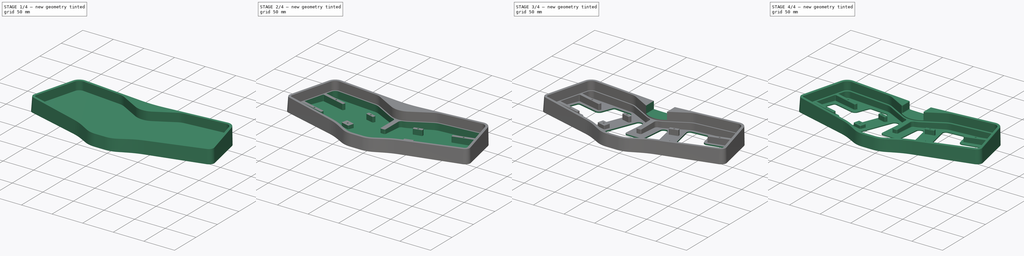
[diagram: build sequence overview — one tinted view per stage of 4, left to right]
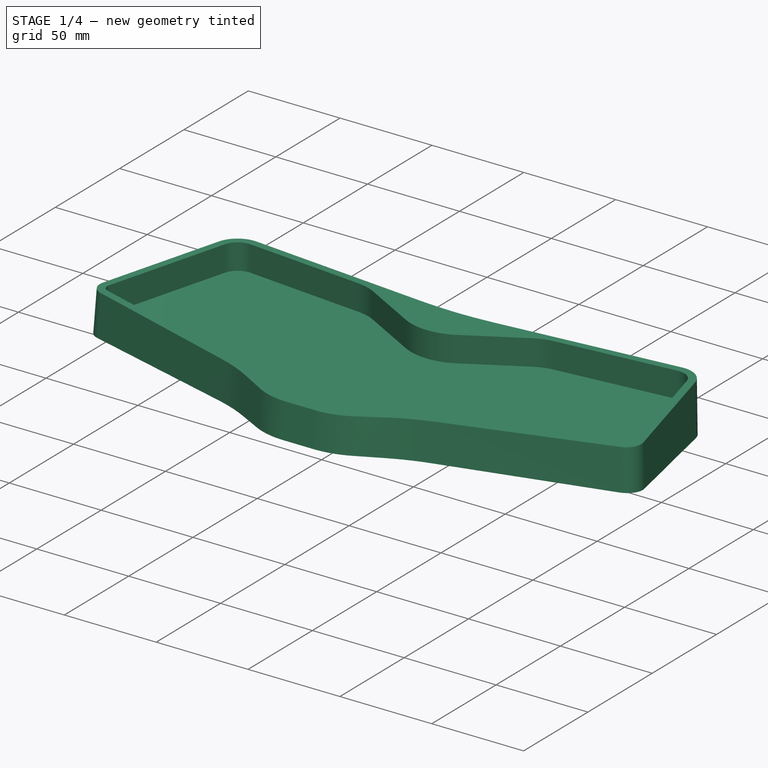
[diagram: stage 1 of 4 — iso view after this stage's code; geometry added in this stage tinted green]
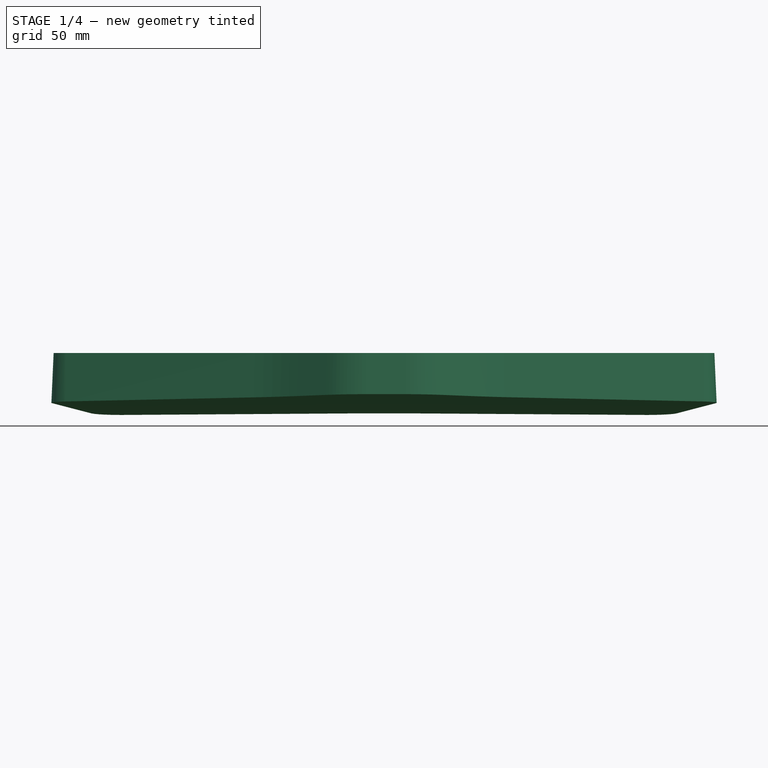
[diagram: stage 1 of 4 — front view after this stage's code; geometry added in this stage tinted green]
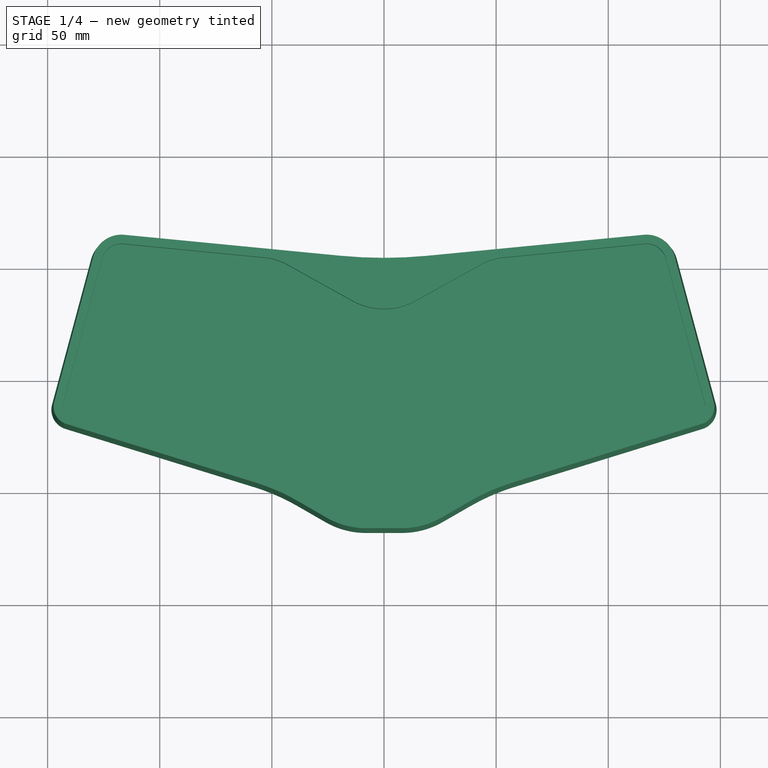
[diagram: stage 1 of 4 — top view after this stage's code; geometry added in this stage tinted green]
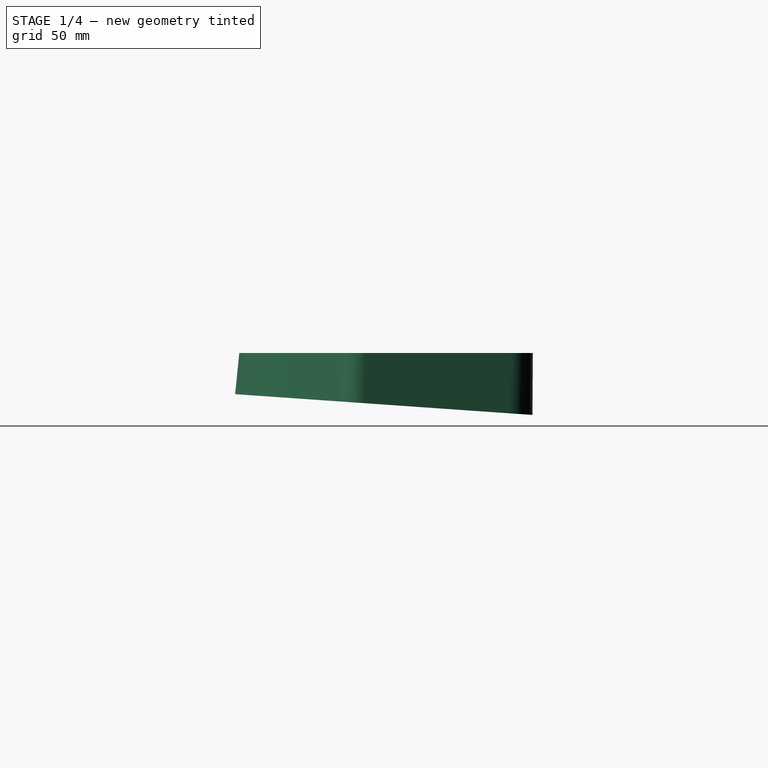
[diagram: stage 1 of 4 — right view after this stage's code; geometry added in this stage tinted green]
FCSTD DOCUMENT  (FreeCAD 0.20R)
Label: case
License: All rights reserved
LicenseURL: http://en.wikipedia.org/wiki/All_rights_reserved
objects: Sketcher::SketchObject×7, PartDesign::Pocket×4, PartDesign::Fillet×2, PartDesign::AdditiveLoft×1, PartDesign::Hole×1, PartDesign::Chamfer×1, PartDesign::Body×1
note: 26 computed .brp shape members not serialized (recipe doc carries the construction recipe); baked Part::Feature solids carry a one-line shape summary decoded from their .brp

FEATURE [Sketcher::SketchObject] Sketch
  AttachmentOffset = pos=(0,-1,0) rot=(1,0,0;-0.069813rad)
  FullyConstrained = false
  MapMode = 5
  Placement = pos=(0,-1,0) rot=(1,0,0;6.21337rad)
  Support = -> [XY_Plane]
  sketch-geometry (18):
    g0: ArcOfCircle CenterX=-4.547e-13 CenterY=255.556 CenterZ=0 NormalX=0 NormalY=0 NormalZ=1 AngleXU=0 Radius=200 StartAngle=4.61574 EndAngle=4.80904
    g1: LineSegment StartX=-141.984 StartY=-20.4604 StartZ=0 EndX=-57.8632 EndY=-46.519 EndZ=0
    g2: LineSegment StartX=115.707 StartY=65.8363 StartZ=0 EndX=19.3001 EndY=56.4893 EndZ=0
    g3: ArcOfCircle CenterX=85.6783 CenterY=-136.309 CenterZ=0 NormalX=0 NormalY=0 NormalZ=1 AngleXU=0 Radius=94 StartAngle=1.8712 EndAngle=2.0944
    g4: LineSegment StartX=141.984 StartY=-20.4604 StartZ=0 EndX=57.8632 EndY=-46.519 EndZ=0
    g5: ArcOfCircle CenterX=-117.058 CenterY=51.9016 CenterZ=0 NormalX=0 NormalY=0 NormalZ=1 AngleXU=0 Radius=14 StartAngle=1.47415 EndAngle=2.87979
    g6: ArcOfCircle CenterX=-85.6783 CenterY=-136.309 CenterZ=0 NormalX=0 NormalY=0 NormalZ=1 AngleXU=0 Radius=94 StartAngle=1.0472 EndAngle=1.27039
    g7: LineSegment StartX=-26.0795 StartY=-62.1769 StartZ=0 EndX=-38.6783 EndY=-54.903 EndZ=0
    g8: LineSegment StartX=-115.707 StartY=65.8363 StartZ=0 EndX=-19.3001 EndY=56.4893 EndZ=0
    g9: ArcOfCircle CenterX=-8.07953 CenterY=-31 CenterZ=0 NormalX=0 NormalY=0 NormalZ=1 AngleXU=0 Radius=36 StartAngle=4.18879 EndAngle=4.71239
    g10: LineSegment StartX=-8.07953 StartY=-67 StartZ=0 EndX=8.07953 EndY=-67 EndZ=0
    g11: ArcOfCircle CenterX=-139.32 CenterY=-11.8634 CenterZ=0 NormalX=0 NormalY=0 NormalZ=1 AngleXU=0 Radius=9 StartAngle=2.87979 EndAngle=4.41199
    g12: LineSegment StartX=-130.581 StartY=55.5251 StartZ=0 EndX=-148.014 EndY=-9.53407 EndZ=0
    g13: ArcOfCircle CenterX=8.07953 CenterY=-31 CenterZ=0 NormalX=0 NormalY=0 NormalZ=1 AngleXU=0 Radius=36 StartAngle=4.71239 EndAngle=5.23599
    g14: LineSegment StartX=26.0795 StartY=-62.1769 StartZ=0 EndX=38.6783 EndY=-54.903 EndZ=0
    g15: ArcOfCircle CenterX=139.32 CenterY=-11.8634 CenterZ=0 NormalX=0 NormalY=0 NormalZ=1 AngleXU=0 Radius=9 StartAngle=5.01279 EndAngle=6.54498
    g16: LineSegment StartX=130.581 StartY=55.5251 StartZ=0 EndX=148.014 EndY=-9.53407 EndZ=0
    g17: ArcOfCircle CenterX=117.058 CenterY=51.9016 CenterZ=0 NormalX=0 NormalY=0 NormalZ=1 AngleXU=0 Radius=14 StartAngle=0.261799 EndAngle=1.66745
  constraints (18):
    c: Coincident(g11,g12)
    c: Coincident(g1,g11)
    c: Coincident(g5,g12)
    c: Coincident(g5,g8)
    c: Coincident(g1,g6)
    c: Coincident(g6,g7)
    c: Coincident(g7,g9)
    c: Coincident(g0,g8)
    c: Coincident(g9,g10)
    c: Coincident(g10,g13)
    c: Coincident(g0,g2)
    c: Coincident(g13,g14)
    c: Coincident(g3,g14)
    c: Coincident(g3,g4)
    c: Coincident(g2,g17)
    c: Coincident(g16,g17)
    c: Coincident(g4,g15)
    c: Coincident(g15,g16)
FEATURE [Sketcher::SketchObject] Sketch001
  AttachmentOffset = pos=(0,0,23) rot=(0,0,1;0rad)
  FullyConstrained = false
  MapMode = 5
  Placement = pos=(0,0,23) rot=(0,0,1;0rad)
  Support = -> [XY_Plane]
  sketch-geometry (18):
    g0: ArcOfCircle CenterX=-4.547e-13 CenterY=255.556 CenterZ=0 NormalX=0 NormalY=0 NormalZ=1 AngleXU=0 Radius=201 StartAngle=4.61574 EndAngle=4.80904
    g1: LineSegment StartX=-115.804 StartY=64.8409 StartZ=0 EndX=-19.3966 EndY=55.494 EndZ=0
    g2: ArcOfCircle CenterX=-117.058 CenterY=51.9016 CenterZ=0 NormalX=0 NormalY=0 NormalZ=1 AngleXU=0 Radius=13 StartAngle=1.47415 EndAngle=2.87979
    g3: LineSegment StartX=-129.615 StartY=55.2663 StartZ=0 EndX=-147.048 EndY=-9.79289 EndZ=0
    g4: ArcOfCircle CenterX=-139.32 CenterY=-11.8634 CenterZ=0 NormalX=0 NormalY=0 NormalZ=1 AngleXU=0 Radius=8 StartAngle=2.87979 EndAngle=4.41199
    g5: LineSegment StartX=-141.688 StartY=-19.5052 StartZ=0 EndX=-57.5673 EndY=-45.5638 EndZ=0
    g6: ArcOfCircle CenterX=-85.6783 CenterY=-136.309 CenterZ=0 NormalX=0 NormalY=0 NormalZ=1 AngleXU=0 Radius=95 StartAngle=1.0472 EndAngle=1.27039
    g7: LineSegment StartX=-25.5795 StartY=-61.3109 StartZ=0 EndX=-38.1783 EndY=-54.037 EndZ=0
    g8: ArcOfCircle CenterX=-8.07953 CenterY=-31 CenterZ=0 NormalX=0 NormalY=0 NormalZ=1 AngleXU=0 Radius=35 StartAngle=4.18879 EndAngle=4.71239
    g9: LineSegment StartX=-8.07953 StartY=-66 StartZ=0 EndX=8.07953 EndY=-66 EndZ=0
    g10: ArcOfCircle CenterX=8.07953 CenterY=-31 CenterZ=0 NormalX=0 NormalY=0 NormalZ=1 AngleXU=0 Radius=35 StartAngle=4.71239 EndAngle=5.23599
    g11: LineSegment StartX=25.5795 StartY=-61.3109 StartZ=0 EndX=38.1783 EndY=-54.037 EndZ=0
    g12: ArcOfCircle CenterX=85.6783 CenterY=-136.309 CenterZ=0 NormalX=0 NormalY=0 NormalZ=1 AngleXU=0 Radius=95 StartAngle=1.8712 EndAngle=2.0944
    g13: LineSegment StartX=141.688 StartY=-19.5052 StartZ=0 EndX=57.5673 EndY=-45.5638 EndZ=0
    g14: ArcOfCircle CenterX=139.32 CenterY=-11.8634 CenterZ=0 NormalX=0 NormalY=0 NormalZ=1 AngleXU=0 Radius=8 StartAngle=5.01279 EndAngle=6.54498
    g15: LineSegment StartX=129.615 StartY=55.2663 StartZ=0 EndX=147.048 EndY=-9.79289 EndZ=0
    g16: ArcOfCircle CenterX=117.058 CenterY=51.9016 CenterZ=0 NormalX=0 NormalY=0 NormalZ=1 AngleXU=0 Radius=13 StartAngle=0.261799 EndAngle=1.66745
    g17: LineSegment StartX=115.804 StartY=64.8409 StartZ=0 EndX=19.3966 EndY=55.494 EndZ=0
  constraints (18):
    c: Coincident(g3,g4)
    c: Coincident(g4,g5)
    c: Coincident(g2,g3)
    c: Coincident(g1,g2)
    c: Coincident(g5,g6)
    c: Coincident(g6,g7)
    c: Coincident(g7,g8)
    c: Coincident(g0,g1)
    c: Coincident(g8,g9)
    c: Coincident(g9,g10)
    c: Coincident(g0,g17)
    c: Coincident(g10,g11)
    c: Coincident(g11,g12)
    c: Coincident(g12,g13)
    c: Coincident(g16,g17)
    c: Coincident(g15,g16)
    c: Coincident(g13,g14)
    c: Coincident(g14,g15)
FEATURE [PartDesign::AdditiveLoft] AdditiveLoft
  Closed = true
  Profile = -> Sketch
  Ruled = true
  Sections = -> [Sketch001]
FEATURE [Sketcher::SketchObject] Sketch002
  FullyConstrained = false
  MapMode = 5
  Placement = pos=(0,0,23) rot=(0,0,1;0rad)
  Support = -> [AdditiveLoft]
  sketch-geometry (22):
    g0: ArcOfCircle CenterX=-2.84e-14 CenterY=60.8327 CenterZ=0 NormalX=0 NormalY=0 NormalZ=1 AngleXU=0 Radius=29 StartAngle=4.20561 EndAngle=5.21917
    g1: LineSegment StartX=-43.137 StartY=51.6107 StartZ=0 EndX=-14.0755 EndY=35.4776 EndZ=0
    g2: LineSegment StartX=43.137 StartY=51.6107 StartZ=0 EndX=14.0755 EndY=35.4776 EndZ=0
    g3: ArcOfCircle CenterX=55.7564 CenterY=28.8785 CenterZ=0 NormalX=0 NormalY=0 NormalZ=1 AngleXU=0 Radius=26 StartAngle=1.66745 EndAngle=2.07757
    g4: ArcOfCircle CenterX=-55.7564 CenterY=28.8785 CenterZ=0 NormalX=0 NormalY=0 NormalZ=1 AngleXU=0 Radius=26 StartAngle=1.06402 EndAngle=1.47415
    g5: LineSegment StartX=-116.19 StartY=60.8596 StartZ=0 EndX=-53.2474 EndY=54.7572 EndZ=0
    g6: ArcOfCircle CenterX=-117.058 CenterY=51.9016 CenterZ=0 NormalX=0 NormalY=0 NormalZ=1 AngleXU=0 Radius=9 StartAngle=1.47415 EndAngle=2.87979
    g7: LineSegment StartX=-125.752 StartY=54.231 StartZ=0 EndX=-143.184 EndY=-10.8282 EndZ=0
    g8: ArcOfCircle CenterX=-139.32 CenterY=-11.8634 CenterZ=0 NormalX=0 NormalY=0 NormalZ=1 AngleXU=0 Radius=4 StartAngle=2.87979 EndAngle=4.41199
    g9: LineSegment StartX=-140.504 StartY=-15.6843 StartZ=0 EndX=-56.3837 EndY=-41.7429 EndZ=0
    g10: ArcOfCircle CenterX=-85.6783 CenterY=-136.309 CenterZ=0 NormalX=0 NormalY=0 NormalZ=1 AngleXU=0 Radius=99 StartAngle=1.0472 EndAngle=1.27039
    g11: LineSegment StartX=-23.5795 StartY=-57.8468 StartZ=0 EndX=-36.1783 EndY=-50.5729 EndZ=0
    g12: ArcOfCircle CenterX=-8.07953 CenterY=-31 CenterZ=0 NormalX=0 NormalY=0 NormalZ=1 AngleXU=0 Radius=31 StartAngle=4.18879 EndAngle=4.71239
    g13: LineSegment StartX=-8.07953 StartY=-62 StartZ=0 EndX=8.07953 EndY=-62 EndZ=0
    g14: ArcOfCircle CenterX=8.07953 CenterY=-31 CenterZ=0 NormalX=0 NormalY=0 NormalZ=1 AngleXU=0 Radius=31 StartAngle=4.71239 EndAngle=5.23599
    g15: LineSegment StartX=23.5795 StartY=-57.8468 StartZ=0 EndX=36.1783 EndY=-50.5729 EndZ=0
    g16: ArcOfCircle CenterX=85.6783 CenterY=-136.309 CenterZ=0 NormalX=0 NormalY=0 NormalZ=1 AngleXU=0 Radius=99 StartAngle=1.8712 EndAngle=2.0944
    g17: LineSegment StartX=140.504 StartY=-15.6843 StartZ=0 EndX=56.3837 EndY=-41.7429 EndZ=0
    g18: LineSegment StartX=116.19 StartY=60.8596 StartZ=0 EndX=53.2474 EndY=54.7572 EndZ=0
    g19: ArcOfCircle CenterX=117.058 CenterY=51.9016 CenterZ=0 NormalX=0 NormalY=0 NormalZ=1 AngleXU=0 Radius=9 StartAngle=0.261799 EndAngle=1.66745
    g20: LineSegment StartX=125.752 StartY=54.231 StartZ=0 EndX=143.184 EndY=-10.8282 EndZ=0
    g21: ArcOfCircle CenterX=139.32 CenterY=-11.8634 CenterZ=0 NormalX=0 NormalY=0 NormalZ=1 AngleXU=0 Radius=4 StartAngle=5.01279 EndAngle=6.54498
  constraints (22):
    c: Coincident(g7,g8)
    c: Coincident(g8,g9)
    c: Coincident(g6,g7)
    c: Coincident(g5,g6)
    c: Coincident(g9,g10)
    c: Coincident(g4,g5)
    c: Coincident(g1,g4)
    c: Coincident(g10,g11)
    c: Coincident(g11,g12)
    c: Coincident(g0,g1)
    c: Coincident(g12,g13)
    c: Coincident(g13,g14)
    c: Coincident(g0,g2)
    c: Coincident(g14,g15)
    c: Coincident(g15,g16)
    c: Coincident(g2,g3)
    c: Coincident(g3,g18)
    c: Coincident(g16,g17)
    c: Coincident(g18,g19)
    c: Coincident(g19,g20)
    c: Coincident(g17,g21)
    c: Coincident(g20,g21)
FEATURE [PartDesign::Pocket] Pocket
  BaseFeature = -> AdditiveLoft
  Direction = (0,0,-1)
  Length = 14
  Length2 = 5
  Profile = -> Sketch002
  ReferenceAxis = -> Sketch002 [N_Axis]
  Type = 0
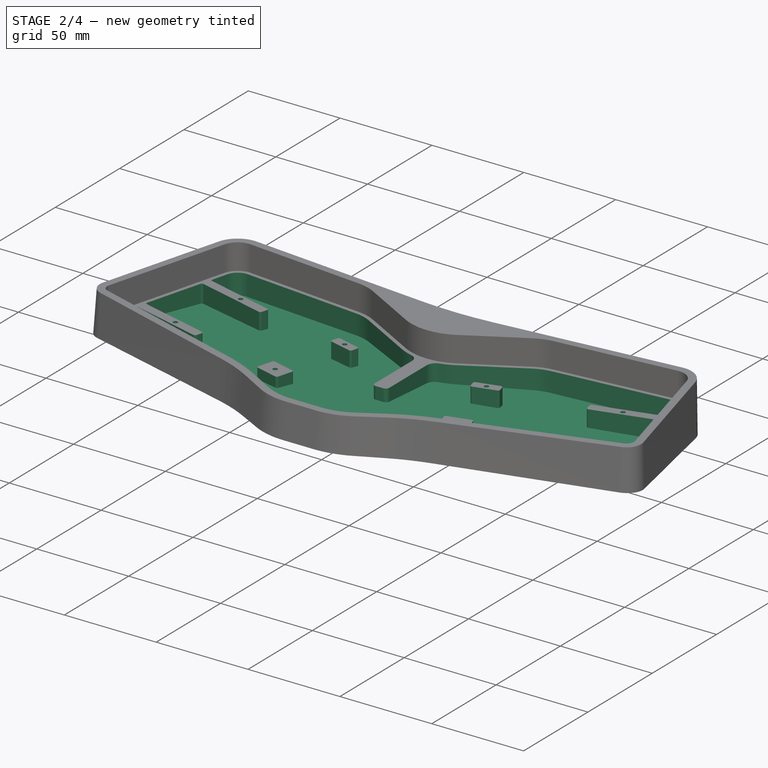
[diagram: stage 2 of 4 — iso view after this stage's code; geometry added in this stage tinted green]
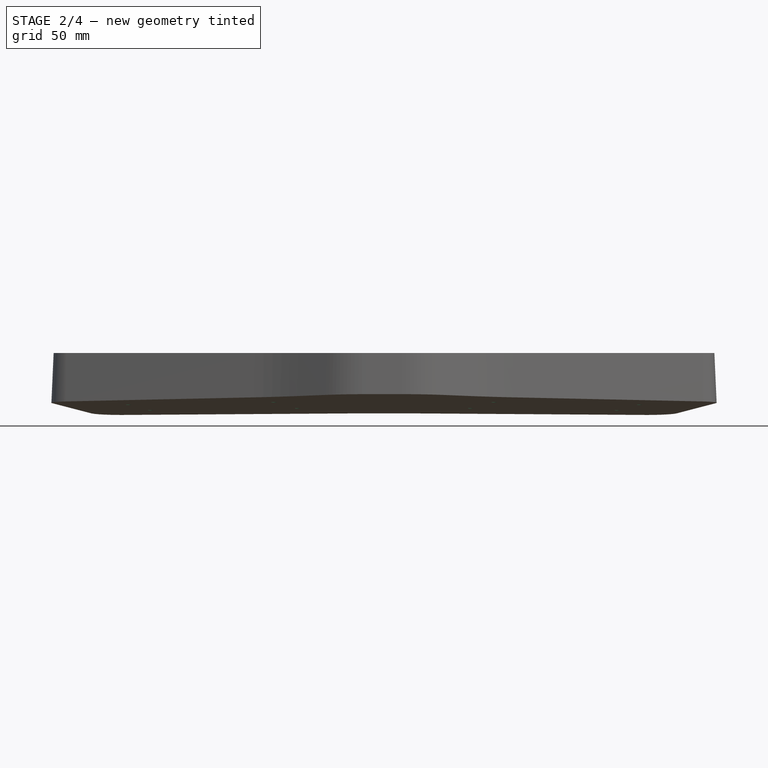
[diagram: stage 2 of 4 — front view after this stage's code; geometry added in this stage tinted green]
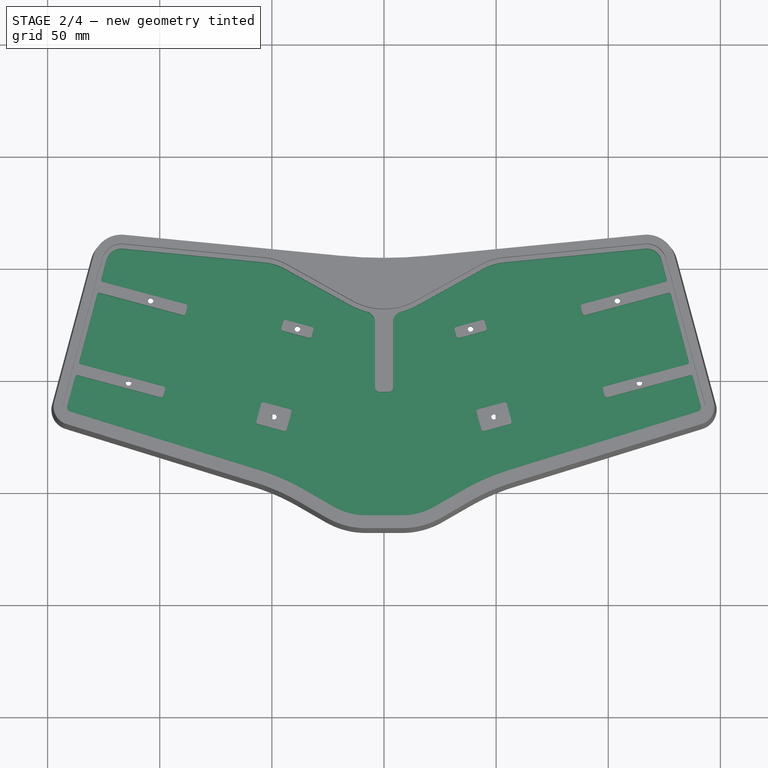
[diagram: stage 2 of 4 — top view after this stage's code; geometry added in this stage tinted green]
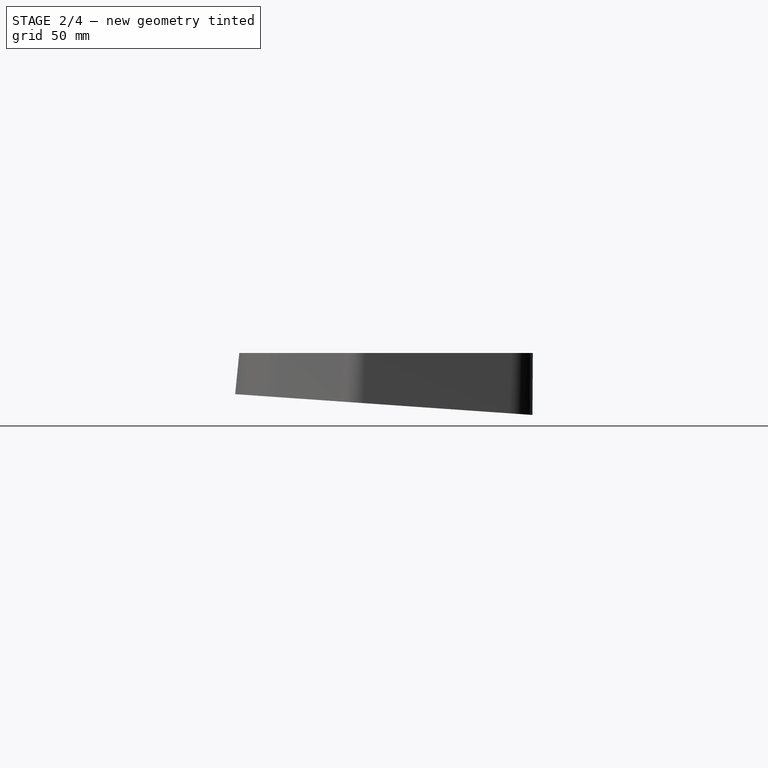
[diagram: stage 2 of 4 — right view after this stage's code; geometry added in this stage tinted green]
FEATURE [Sketcher::SketchObject] Sketch003
  FullyConstrained = false
  MapMode = 5
  Placement = pos=(0,0,9) rot=(0,0,1;0rad)
  Support = -> [Pocket]
  sketch-geometry (94):
    g0: LineSegment StartX=-116.383 StartY=58.8689 StartZ=0 EndX=-53.4404 EndY=52.7665 EndZ=0
    g1: ArcOfCircle CenterX=-55.7564 CenterY=28.8785 CenterZ=0 NormalX=0 NormalY=0 NormalZ=1 AngleXU=0 Radius=24 StartAngle=1.06402 EndAngle=1.47415
    g2: LineSegment StartX=-44.1077 StartY=49.862 StartZ=0 EndX=-15.0462 EndY=33.729 EndZ=0
    g3: ArcOfCircle CenterX=-117.058 CenterY=51.9016 CenterZ=0 NormalX=0 NormalY=0 NormalZ=1 AngleXU=0 Radius=7 StartAngle=1.47415 EndAngle=2.87979
    g4: ArcOfCircle CenterX=-139.32 CenterY=-11.8634 CenterZ=0 NormalX=0 NormalY=0 NormalZ=1 AngleXU=0 Radius=2 StartAngle=2.87979 EndAngle=4.41199
    g5: LineSegment StartX=-139.912 StartY=-13.7739 StartZ=0 EndX=-55.7919 EndY=-39.8325 EndZ=0
    g6: ArcOfCircle CenterX=-85.6783 CenterY=-136.309 CenterZ=0 NormalX=0 NormalY=0 NormalZ=1 AngleXU=0 Radius=101 StartAngle=1.0472 EndAngle=1.27039
    g7: LineSegment StartX=-22.5795 StartY=-56.1147 StartZ=0 EndX=-35.1783 EndY=-48.8409 EndZ=0
    g8: ArcOfCircle CenterX=-8.07953 CenterY=-31 CenterZ=0 NormalX=0 NormalY=0 NormalZ=1 AngleXU=0 Radius=29 StartAngle=4.18879 EndAngle=4.71239
    g9: LineSegment StartX=116.383 StartY=58.8689 StartZ=0 EndX=53.4404 EndY=52.7665 EndZ=0
    g10: ArcOfCircle CenterX=55.7564 CenterY=28.8785 CenterZ=0 NormalX=0 NormalY=0 NormalZ=1 AngleXU=0 Radius=24 StartAngle=1.66745 EndAngle=2.07757
    g11: LineSegment StartX=44.1077 StartY=49.862 StartZ=0 EndX=15.0462 EndY=33.729 EndZ=0
    g12: ArcOfCircle CenterX=117.058 CenterY=51.9016 CenterZ=0 NormalX=0 NormalY=0 NormalZ=1 AngleXU=0 Radius=7 StartAngle=0.261799 EndAngle=1.66745
    g13: ArcOfCircle CenterX=139.32 CenterY=-11.8634 CenterZ=0 NormalX=0 NormalY=0 NormalZ=1 AngleXU=0 Radius=2 StartAngle=5.01279 EndAngle=6.54498
    g14: LineSegment StartX=139.912 StartY=-13.7739 StartZ=0 EndX=55.7919 EndY=-39.8325 EndZ=0
    g15: ArcOfCircle CenterX=85.6783 CenterY=-136.309 CenterZ=0 NormalX=0 NormalY=0 NormalZ=1 AngleXU=0 Radius=101 StartAngle=1.8712 EndAngle=2.0944
    g16: LineSegment StartX=22.5795 StartY=-56.1147 StartZ=0 EndX=35.1783 EndY=-48.8409 EndZ=0
    g17: ArcOfCircle CenterX=8.07953 CenterY=-31 CenterZ=0 NormalX=0 NormalY=0 NormalZ=1 AngleXU=0 Radius=29 StartAngle=4.71239 EndAngle=5.23599
    g18: LineSegment StartX=-8.07953 StartY=-60 StartZ=0 EndX=8.07953 EndY=-60 EndZ=0
    g19: LineSegment StartX=123.82 StartY=53.7134 StartZ=0 EndX=126.092 EndY=45.234 EndZ=0
    g20: ArcOfCircle CenterX=125.126 CenterY=44.9752 CenterZ=0 NormalX=0 NormalY=0 NormalZ=1 AngleXU=0 Radius=1 StartAngle=4.97419 EndAngle=6.54498
    g21: ArcOfCircle CenterX=126.938 CenterY=38.2137 CenterZ=0 NormalX=0 NormalY=0 NormalZ=1 AngleXU=0 Radius=1 StartAngle=0.261799 EndAngle=1.8326
    g22: LineSegment StartX=88.438 StartY=34.1095 StartZ=0 EndX=125.385 EndY=44.0093 EndZ=0
    g23: ArcOfCircle CenterX=88.6968 CenterY=33.1435 CenterZ=0 NormalX=0 NormalY=0 NormalZ=1 AngleXU=0 Radius=1 StartAngle=1.8326 EndAngle=3.40339
    g24: LineSegment StartX=87.7309 StartY=32.8847 StartZ=0 EndX=88.5073 EndY=29.9869 EndZ=0
    g25: ArcOfCircle CenterX=89.4732 CenterY=30.2457 CenterZ=0 NormalX=0 NormalY=0 NormalZ=1 AngleXU=0 Radius=1 StartAngle=3.40339 EndAngle=4.97419
    g26: ArcOfCircle CenterX=55.9064 CenterY=-18.3478 CenterZ=0 NormalX=0 NormalY=0 NormalZ=1 AngleXU=0 Radius=1 StartAngle=4.97419 EndAngle=6.54498
    g27: LineSegment StartX=56.8723 StartY=-18.089 StartZ=0 EndX=54.8018 EndY=-10.3615 EndZ=0
    g28: ArcOfCircle CenterX=53.8359 CenterY=-10.6204 CenterZ=0 NormalX=0 NormalY=0 NormalZ=1 AngleXU=0 Radius=1 StartAngle=0.261799 EndAngle=1.8326
    g29: LineSegment StartX=41.9859 StartY=-12.7603 StartZ=0 EndX=53.577 EndY=-9.65444 EndZ=0
    g30: ArcOfCircle CenterX=42.2447 CenterY=-13.7262 CenterZ=0 NormalX=0 NormalY=0 NormalZ=1 AngleXU=0 Radius=1 StartAngle=1.8326 EndAngle=3.40339
    g31: LineSegment StartX=43.3494 StartY=-21.7124 StartZ=0 EndX=41.2788 EndY=-13.985 EndZ=0
    g32: LineSegment StartX=44.5741 StartY=-22.4195 StartZ=0 EndX=56.1652 EndY=-19.3137 EndZ=0
    g33: ArcOfCircle CenterX=44.3153 CenterY=-21.4536 CenterZ=0 NormalX=0 NormalY=0 NormalZ=1 AngleXU=0 Radius=1 StartAngle=3.40339 EndAngle=4.97419
    g34: ArcOfCircle CenterX=32.4096 CenterY=22.979 CenterZ=0 NormalX=0 NormalY=0 NormalZ=1 AngleXU=0 Radius=1 StartAngle=1.8326 EndAngle=3.40339
    g35: LineSegment StartX=43.7419 StartY=27.0507 StartZ=0 EndX=32.1508 EndY=23.9449 EndZ=0
    g36: ArcOfCircle CenterX=44.0007 CenterY=26.0848 CenterZ=0 NormalX=0 NormalY=0 NormalZ=1 AngleXU=0 Radius=1 StartAngle=0.261799 EndAngle=1.8326
    g37: LineSegment StartX=45.7431 StartY=23.4459 StartZ=0 EndX=44.9667 EndY=26.3436 EndZ=0
    g38: ArcOfCircle CenterX=44.7772 CenterY=23.187 CenterZ=0 NormalX=0 NormalY=0 NormalZ=1 AngleXU=0 Radius=1 StartAngle=4.97419 EndAngle=6.54498
    g39: LineSegment StartX=33.4449 StartY=19.1153 StartZ=0 EndX=45.036 EndY=22.2211 EndZ=0
    g40: LineSegment StartX=31.4437 StartY=22.7202 StartZ=0 EndX=32.2201 EndY=19.8224 EndZ=0
    g41: ArcOfCircle CenterX=33.1861 CenterY=20.0812 CenterZ=0 NormalX=0 NormalY=0 NormalZ=1 AngleXU=0 Radius=1 StartAngle=3.40339 EndAngle=4.97419
    g42: LineSegment StartX=137.739 StartY=1.76736 StartZ=0 EndX=141.252 EndY=-11.3458 EndZ=0
    g43: ArcOfCircle CenterX=136.773 CenterY=1.50854 CenterZ=0 NormalX=0 NormalY=0 NormalZ=1 AngleXU=0 Radius=1 StartAngle=0.261799 EndAngle=1.8326
    g44: LineSegment StartX=127.903 StartY=38.4725 StartZ=0 EndX=135.927 EndY=8.52884 EndZ=0
    g45: ArcOfCircle CenterX=134.961 CenterY=8.27002 CenterZ=0 NormalX=0 NormalY=0 NormalZ=1 AngleXU=0 Radius=1 StartAngle=4.97419 EndAngle=6.54498
    g46: LineSegment StartX=135.22 StartY=7.3041 StartZ=0 EndX=98.2731 EndY=-2.59573 EndZ=0
    g47: ArcOfCircle CenterX=98.5319 CenterY=-3.56166 CenterZ=0 NormalX=0 NormalY=0 NormalZ=1 AngleXU=0 Radius=1 StartAngle=1.8326 EndAngle=3.40339
    g48: LineSegment StartX=97.566 StartY=-3.82047 StartZ=0 EndX=98.3424 EndY=-6.71825 EndZ=0
    g49: LineSegment StartX=99.5672 StartY=-7.42536 StartZ=0 EndX=136.514 EndY=2.47447 EndZ=0
    g50: ArcOfCircle CenterX=99.3084 CenterY=-6.45943 CenterZ=0 NormalX=0 NormalY=0 NormalZ=1 AngleXU=0 Radius=1 StartAngle=3.40339 EndAngle=4.97419
    g51: ArcOfCircle CenterX=2.84e-14 CenterY=60.8327 CenterZ=0 NormalX=0 NormalY=0 NormalZ=1 AngleXU=0 Radius=31 StartAngle=4.96507 EndAngle=5.21917
    g52: ArcOfCircle CenterX=9 CenterY=25.9758 CenterZ=0 NormalX=0 NormalY=0 NormalZ=1 AngleXU=0 Radius=5 StartAngle=1.82348 EndAngle=3.14159
    g53: ArcOfCircle CenterX=-2.84e-14 CenterY=60.8327 CenterZ=0 NormalX=0 NormalY=0 NormalZ=1 AngleXU=0 Radius=31 StartAngle=4.20561 EndAngle=4.45971
    g54: ArcOfCircle CenterX=-9 CenterY=25.9758 CenterZ=0 NormalX=0 NormalY=0 NormalZ=1 AngleXU=0 Radius=5 StartAngle=0 EndAngle=1.31812
    g55: ArcOfCircle CenterX=-88.6968 CenterY=33.1435 CenterZ=0 NormalX=0 NormalY=0 NormalZ=1 AngleXU=0 Radius=1 StartAngle=6.02139 EndAngle=7.59218
    g56: LineSegment StartX=-87.7309 StartY=32.8847 StartZ=0 EndX=-88.5073 EndY=29.9869 EndZ=0
    g57: ArcOfCircle CenterX=-89.4732 CenterY=30.2457 CenterZ=0 NormalX=0 NormalY=0 NormalZ=1 AngleXU=0 Radius=1 StartAngle=4.45059 EndAngle=6.02139
    g58: ArcOfCircle CenterX=-55.9064 CenterY=-18.3478 CenterZ=0 NormalX=0 NormalY=0 NormalZ=1 AngleXU=0 Radius=1 StartAngle=2.87979 EndAngle=4.45059
    g59: LineSegment StartX=-56.8723 StartY=-18.089 StartZ=0 EndX=-54.8018 EndY=-10.3615 EndZ=0
    g60: ArcOfCircle CenterX=-53.8359 CenterY=-10.6204 CenterZ=0 NormalX=0 NormalY=0 NormalZ=1 AngleXU=0 Radius=1 StartAngle=1.309 EndAngle=2.87979
    g61: LineSegment StartX=-41.9859 StartY=-12.7603 StartZ=0 EndX=-53.577 EndY=-9.65444 EndZ=0
    g62: ArcOfCircle CenterX=-42.2447 CenterY=-13.7262 CenterZ=0 NormalX=0 NormalY=0 NormalZ=1 AngleXU=0 Radius=1 StartAngle=6.02139 EndAngle=7.59218
    g63: LineSegment StartX=-43.3494 StartY=-21.7124 StartZ=0 EndX=-41.2788 EndY=-13.985 EndZ=0
    g64: LineSegment StartX=-44.5741 StartY=-22.4195 StartZ=0 EndX=-56.1652 EndY=-19.3137 EndZ=0
    g65: ArcOfCircle CenterX=-44.3153 CenterY=-21.4536 CenterZ=0 NormalX=0 NormalY=0 NormalZ=1 AngleXU=0 Radius=1 StartAngle=4.45059 EndAngle=6.02139
    g66: ArcOfCircle CenterX=-32.4096 CenterY=22.979 CenterZ=0 NormalX=0 NormalY=0 NormalZ=1 AngleXU=0 Radius=1 StartAngle=6.02139 EndAngle=7.59218
    g67: LineSegment StartX=-43.7419 StartY=27.0507 StartZ=0 EndX=-32.1508 EndY=23.9449 EndZ=0
    g68: ArcOfCircle CenterX=-44.0007 CenterY=26.0848 CenterZ=0 NormalX=0 NormalY=0 NormalZ=1 AngleXU=0 Radius=1 StartAngle=1.309 EndAngle=2.87979
    g69: LineSegment StartX=-45.7431 StartY=23.4459 StartZ=0 EndX=-44.9667 EndY=26.3436 EndZ=0
    g70: ArcOfCircle CenterX=-44.7772 CenterY=23.187 CenterZ=0 NormalX=0 NormalY=0 NormalZ=1 AngleXU=0 Radius=1 StartAngle=2.87979 EndAngle=4.45059
    g71: LineSegment StartX=-33.4449 StartY=19.1153 StartZ=0 EndX=-45.036 EndY=22.2211 EndZ=0
    g72: LineSegment StartX=-31.4437 StartY=22.7202 StartZ=0 EndX=-32.2201 EndY=19.8224 EndZ=0
    g73: ArcOfCircle CenterX=-33.1861 CenterY=20.0812 CenterZ=0 NormalX=0 NormalY=0 NormalZ=1 AngleXU=0 Radius=1 StartAngle=4.45059 EndAngle=6.02139
    g74: ArcOfCircle CenterX=-98.5319 CenterY=-3.56166 CenterZ=0 NormalX=0 NormalY=0 NormalZ=1 AngleXU=0 Radius=1 StartAngle=6.02139 EndAngle=7.59218
    g75: ArcOfCircle CenterX=-126.938 CenterY=38.2137 CenterZ=0 NormalX=0 NormalY=0 NormalZ=1 AngleXU=0 Radius=1 StartAngle=1.309 EndAngle=2.87979
    g76: LineSegment StartX=-88.438 StartY=34.1095 StartZ=0 EndX=-125.385 EndY=44.0093 EndZ=0
    g77: LineSegment StartX=-123.82 StartY=53.7134 StartZ=0 EndX=-126.092 EndY=45.234 EndZ=0
    g78: ArcOfCircle CenterX=-125.126 CenterY=44.9752 CenterZ=0 NormalX=0 NormalY=0 NormalZ=1 AngleXU=0 Radius=1 StartAngle=2.87979 EndAngle=4.45059
    g79: LineSegment StartX=-135.22 StartY=7.3041 StartZ=0 EndX=-98.2731 EndY=-2.59573 EndZ=0
    g80: LineSegment StartX=-127.903 StartY=38.4725 StartZ=0 EndX=-135.927 EndY=8.52884 EndZ=0
    g81: ArcOfCircle CenterX=-134.961 CenterY=8.27002 CenterZ=0 NormalX=0 NormalY=0 NormalZ=1 AngleXU=0 Radius=1 StartAngle=2.87979 EndAngle=4.45059
    g82: LineSegment StartX=-137.739 StartY=1.76736 StartZ=0 EndX=-141.252 EndY=-11.3458 EndZ=0
    g83: ArcOfCircle CenterX=-136.773 CenterY=1.50854 CenterZ=0 NormalX=0 NormalY=0 NormalZ=1 AngleXU=0 Radius=1 StartAngle=1.309 EndAngle=2.87979
    g84: LineSegment StartX=-89.7321 StartY=29.2798 StartZ=0 EndX=-126.679 EndY=39.1797 EndZ=0
    g85: LineSegment StartX=-99.5672 StartY=-7.42536 StartZ=0 EndX=-136.514 EndY=2.47447 EndZ=0
    g86: LineSegment StartX=-97.566 StartY=-3.82047 StartZ=0 EndX=-98.3424 EndY=-6.71825 EndZ=0
    g87: ArcOfCircle CenterX=-99.3084 CenterY=-6.45943 CenterZ=0 NormalX=0 NormalY=0 NormalZ=1 AngleXU=0 Radius=1 StartAngle=4.45059 EndAngle=6.02139
    g88: LineSegment StartX=89.7321 StartY=29.2798 StartZ=0 EndX=126.679 EndY=39.1797 EndZ=0
    g89: LineSegment StartX=-4 StartY=-3 StartZ=0 EndX=-4 EndY=25.9758 EndZ=0
    g90: ArcOfCircle CenterX=-2 CenterY=-3 CenterZ=0 NormalX=0 NormalY=0 NormalZ=1 AngleXU=0 Radius=2 StartAngle=3.14159 EndAngle=4.71239
    g91: LineSegment StartX=-2 StartY=-5 StartZ=0 EndX=2 EndY=-5 EndZ=0
    g92: LineSegment StartX=4 StartY=25.9758 StartZ=0 EndX=4 EndY=-3 EndZ=0
    g93: ArcOfCircle CenterX=2 CenterY=-3 CenterZ=0 NormalX=0 NormalY=0 NormalZ=1 AngleXU=0 Radius=2 StartAngle=4.71239 EndAngle=6.28319
  constraints (94):
    c: Coincident(g4,g82)
    c: Coincident(g4,g5)
    c: Coincident(g82,g83)
    c: Coincident(g83,g85)
    c: Coincident(g80,g81)
    c: Coincident(g79,g81)
    c: Coincident(g75,g80)
    c: Coincident(g75,g84)
    c: Coincident(g77,g78)
    c: Coincident(g76,g78)
    c: Coincident(g3,g77)
    c: Coincident(g0,g3)
    c: Coincident(g85,g87)
    c: Coincident(g86,g87)
    c: Coincident(g74,g79)
    c: Coincident(g74,g86)
    c: Coincident(g57,g84)
    c: Coincident(g56,g57)
    c: Coincident(g55,g76)
    c: Coincident(g55,g56)
    c: Coincident(g58,g59)
    c: Coincident(g58,g64)
    c: Coincident(g5,g6)
    c: Coincident(g59,g60)
    c: Coincident(g60,g61)
    c: Coincident(g0,g1)
    c: Coincident(g69,g70)
    c: Coincident(g70,g71)
    c: Coincident(g68,g69)
    c: Coincident(g64,g65)
    c: Coincident(g1,g2)
    c: Coincident(g67,g68)
    c: Coincident(g63,g65)
    c: Coincident(g61,g62)
    c: Coincident(g62,g63)
    c: Coincident(g6,g7)
    c: Coincident(g71,g73)
    c: Coincident(g72,g73)
    c: Coincident(g66,g67)
    c: Coincident(g66,g72)
    c: Coincident(g7,g8)
    c: Coincident(g2,g53)
    c: Coincident(g8,g18)
    c: Coincident(g53,g54)
    c: Coincident(g89,g90)
    c: Coincident(g54,g89)
    c: Coincident(g90,g91)
    c: Coincident(g91,g93)
    c: Coincident(g92,g93)
    c: Coincident(g52,g92)
    c: Coincident(g51,g52)
    c: Coincident(g17,g18)
    c: Coincident(g11,g51)
    c: Coincident(g16,g17)
    c: Coincident(g34,g40)
    c: Coincident(g34,g35)
    c: Coincident(g40,g41)
    c: Coincident(g39,g41)
    c: Coincident(g15,g16)
    c: Coincident(g30,g31)
    c: Coincident(g29,g30)
    c: Coincident(g31,g33)
    c: Coincident(g35,g36)
    c: Coincident(g10,g11)
    c: Coincident(g32,g33)
    c: Coincident(g36,g37)
    c: Coincident(g38,g39)
    c: Coincident(g37,g38)
    c: Coincident(g9,g10)
    c: Coincident(g28,g29)
    c: Coincident(g27,g28)
    c: Coincident(g14,g15)
    c: Coincident(g26,g32)
    c: Coincident(g26,g27)
    c: Coincident(g23,g24)
    c: Coincident(g22,g23)
    c: Coincident(g24,g25)
    c: Coincident(g25,g88)
    c: Coincident(g47,g48)
    c: Coincident(g46,g47)
    c: Coincident(g48,g50)
    c: Coincident(g49,g50)
    c: Coincident(g9,g12)
    c: Coincident(g12,g19)
    c: Coincident(g20,g22)
    c: Coincident(g19,g20)
    c: Coincident(g21,g88)
    c: Coincident(g21,g44)
    c: Coincident(g45,g46)
    c: Coincident(g44,g45)
    c: Coincident(g43,g49)
    c: Coincident(g42,g43)
    c: Coincident(g13,g14)
    c: Coincident(g13,g42)
FEATURE [Sketcher::SketchObject] Sketch004
  FullyConstrained = false
  MapMode = 5
  Placement = pos=(0,0,9) rot=(0,0,1;0rad)
  Support = -> [Pocket]
  sketch-geometry (8):
    g0: Circle CenterX=104.057 CenterY=35.7063 CenterZ=0 NormalX=0 NormalY=0 NormalZ=-1 AngleXU=0 Radius=1.1
    g1: Circle CenterX=49.0756 CenterY=-16.037 CenterZ=0 NormalX=0 NormalY=0 NormalZ=-1 AngleXU=0 Radius=1.1
    g2: Circle CenterX=113.892 CenterY=-0.998849 CenterZ=0 NormalX=0 NormalY=0 NormalZ=-1 AngleXU=0 Radius=1.1
    g3: Circle CenterX=38.5934 CenterY=23.083 CenterZ=0 NormalX=0 NormalY=0 NormalZ=-1 AngleXU=0 Radius=1.1
    g4: Circle CenterX=-104.057 CenterY=35.7063 CenterZ=0 NormalX=0 NormalY=0 NormalZ=-1 AngleXU=0 Radius=1.1
    g5: Circle CenterX=-49.0756 CenterY=-16.037 CenterZ=0 NormalX=0 NormalY=0 NormalZ=-1 AngleXU=0 Radius=1.1
    g6: Circle CenterX=-113.892 CenterY=-0.998849 CenterZ=0 NormalX=0 NormalY=0 NormalZ=-1 AngleXU=0 Radius=1.1
    g7: Circle CenterX=-38.5934 CenterY=23.083 CenterZ=0 NormalX=0 NormalY=0 NormalZ=-1 AngleXU=0 Radius=1.1
FEATURE [PartDesign::Pocket] Pocket001
  BaseFeature = -> Pocket
  Direction = (0,0,-1)
  Length = 0
  Length2 = 5
  Offset = -2
  Profile = -> Sketch003
  ReferenceAxis = -> Sketch003 [N_Axis]
  Type = 3
  UpToFace = -> Pocket [Face1]
FEATURE [PartDesign::Hole] Hole
  BaseFeature = -> Pocket001
  CustomThreadClearance = 0
  Depth = 25
  DepthType = 0
  Diameter = 2.42
  DrillForDepth = false
  DrillPoint = 1
  DrillPointAngle = 118
  HoleCutCountersinkAngle = 90
  HoleCutCustomValues = false
  HoleCutDepth = 0
  HoleCutDiameter = 6.1
  HoleCutType = 0
  ModelThread = false
  Profile = -> Sketch004
  Tapered = false
  TaperedAngle = 90
  ThreadClass = 0
  ThreadDepth = 25
  ThreadDepthType = 0
  ThreadDirection = 0
  ThreadFit = 0
  ThreadSize = 7
  ThreadType = 1
  Threaded = false
  UseCustomThreadClearance = false
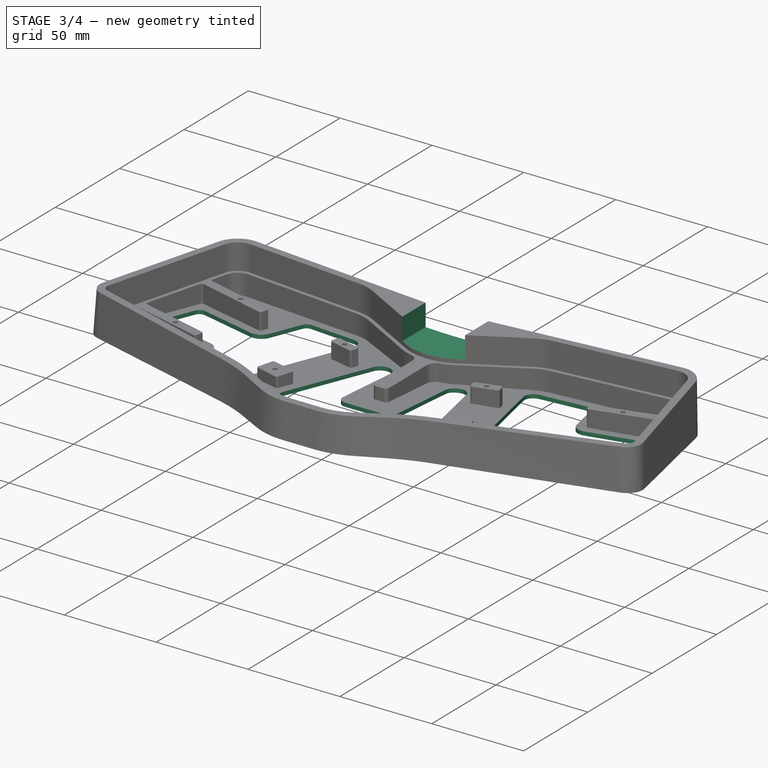
[diagram: stage 3 of 4 — iso view after this stage's code; geometry added in this stage tinted green]
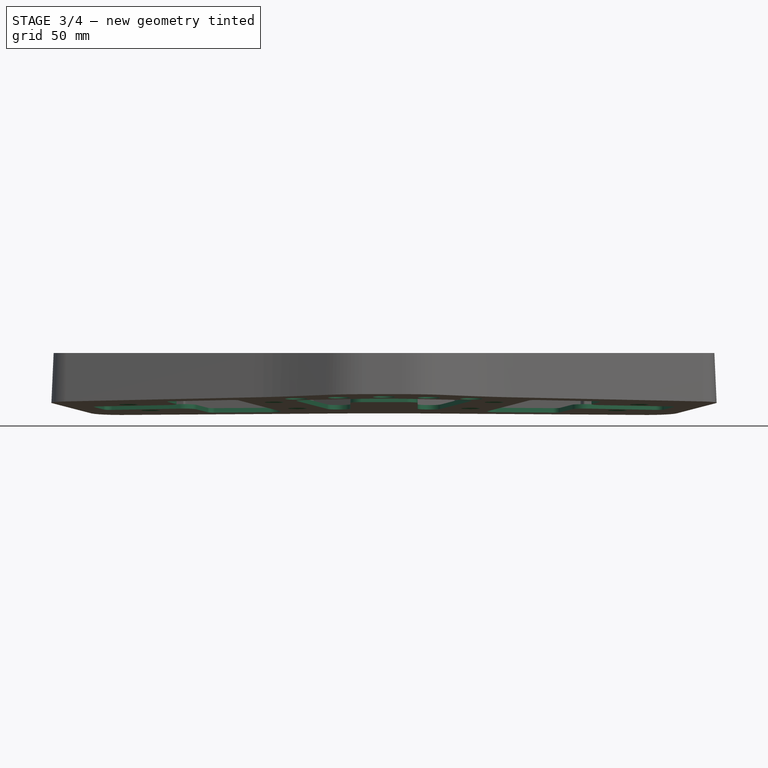
[diagram: stage 3 of 4 — front view after this stage's code; geometry added in this stage tinted green]
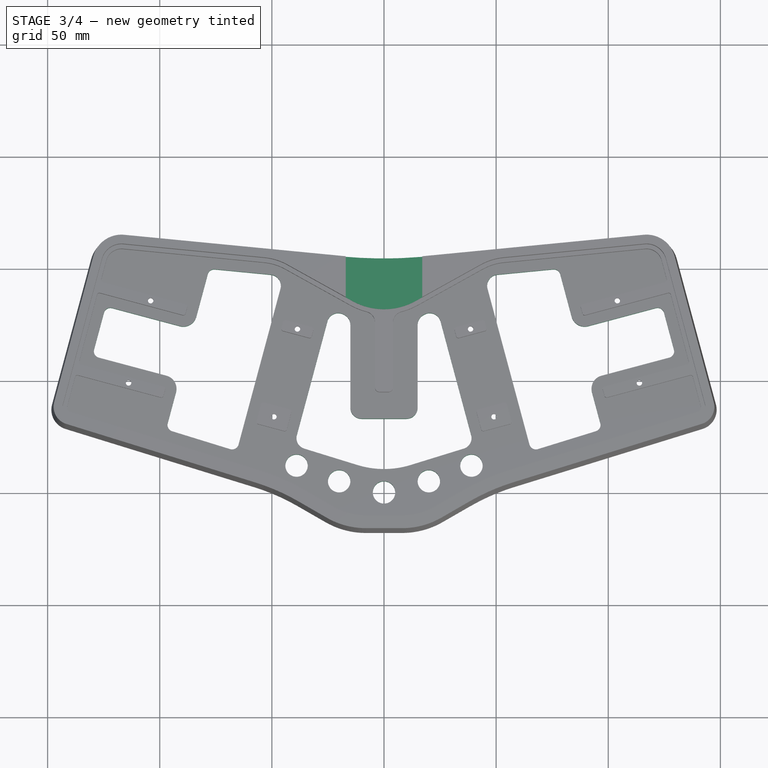
[diagram: stage 3 of 4 — top view after this stage's code; geometry added in this stage tinted green]
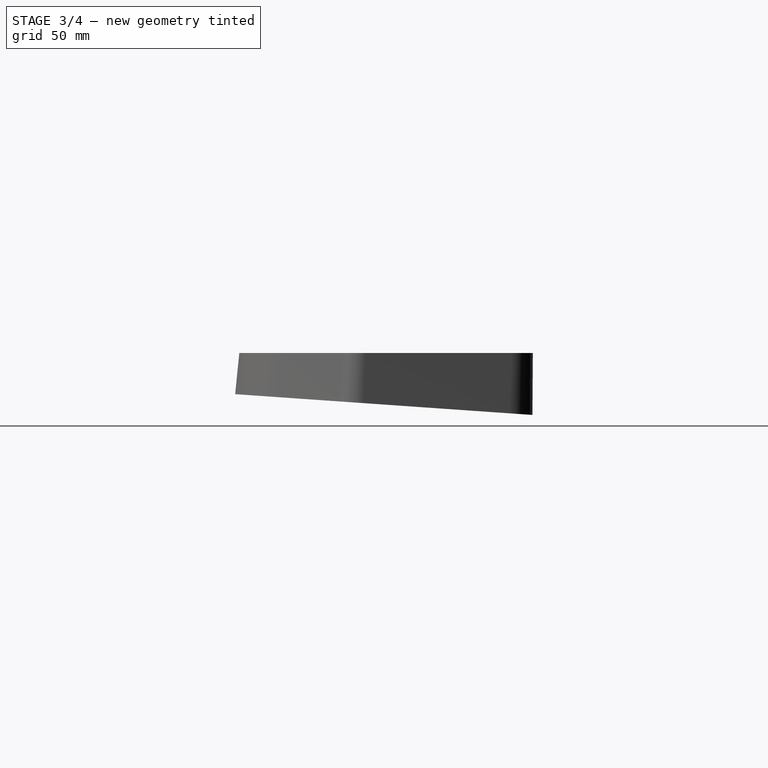
[diagram: stage 3 of 4 — right view after this stage's code; geometry added in this stage tinted green]
FEATURE [Sketcher::SketchObject] Sketch005
  FullyConstrained = false
  MapMode = 5
  Placement = pos=(0,0.134307,1.92068) rot=(-1,0,0;0.069813rad)
  Support = -> [Hole]
  sketch-geometry (55):
    g0: Circle CenterX=-39 CenterY=-38 CenterZ=0 NormalX=0 NormalY=0 NormalZ=-1 AngleXU=0 Radius=5
    g1: ArcOfCircle CenterX=98.5319 CenterY=-3.56166 CenterZ=0 NormalX=0 NormalY=0 NormalZ=1 AngleXU=0 Radius=6 StartAngle=1.8326 EndAngle=3.40339
    g2: ArcOfCircle CenterX=89.4732 CenterY=30.2457 CenterZ=0 NormalX=0 NormalY=0 NormalZ=1 AngleXU=0 Radius=6 StartAngle=3.40339 EndAngle=4.97419
    g3: ArcOfCircle CenterX=20.4082 CenterY=25.268 CenterZ=0 NormalX=0 NormalY=0 NormalZ=1 AngleXU=0 Radius=5 StartAngle=0.261799 EndAngle=2.07757
    g4: ArcOfCircle CenterX=20 CenterY=25.0414 CenterZ=0 NormalX=0 NormalY=0 NormalZ=1 AngleXU=0 Radius=5 StartAngle=2.07757 EndAngle=3.14159
    g5: LineSegment StartX=17.5732 StartY=29.413 StartZ=0 EndX=17.9814 EndY=29.6396 EndZ=0
    g6: ArcOfCircle CenterX=50.995 CenterY=42.4825 CenterZ=0 NormalX=0 NormalY=0 NormalZ=1 AngleXU=0 Radius=5 StartAngle=1.66745 EndAngle=3.40339
    g7: LineSegment StartX=91.0262 StartY=24.4502 StartZ=0 EndX=121.211 EndY=32.5383 EndZ=0
    g8: ArcOfCircle CenterX=121.988 CenterY=29.6405 CenterZ=0 NormalX=0 NormalY=0 NormalZ=1 AngleXU=0 Radius=3 StartAngle=0.261799 EndAngle=1.8326
    g9: LineSegment StartX=127.164 StartY=10.322 StartZ=0 EndX=96.979 EndY=2.2339 EndZ=0
    g10: LineSegment StartX=124.886 StartY=30.417 StartZ=0 EndX=129.285 EndY=13.9962 EndZ=0
    g11: ArcOfCircle CenterX=126.388 CenterY=13.2198 CenterZ=0 NormalX=0 NormalY=0 NormalZ=1 AngleXU=0 Radius=3 StartAngle=4.97419 EndAngle=6.54498
    g12: ArcOfCircle CenterX=67.7445 CenterY=-27.7548 CenterZ=0 NormalX=0 NormalY=0 NormalZ=1 AngleXU=0 Radius=3 StartAngle=3.40339 EndAngle=5.01279
    g13: LineSegment StartX=94.4423 StartY=-22.625 StartZ=0 EndX=68.6322 EndY=-30.6204 EndZ=0
    g14: LineSegment StartX=92.7363 StartY=-5.11457 StartZ=0 EndX=96.4524 EndY=-18.9829 EndZ=0
    g15: ArcOfCircle CenterX=93.5546 CenterY=-19.7594 CenterZ=0 NormalX=0 NormalY=0 NormalZ=1 AngleXU=0 Radius=3 StartAngle=5.01279 EndAngle=6.54498
    g16: LineSegment StartX=78.5946 StartY=47.6633 StartZ=0 EndX=83.6777 EndY=28.6928 EndZ=0
    g17: LineSegment StartX=75.4073 StartY=49.8728 StartZ=0 EndX=50.5125 EndY=47.4592 EndZ=0
    g18: ArcOfCircle CenterX=75.6968 CenterY=46.8868 CenterZ=0 NormalX=0 NormalY=0 NormalZ=1 AngleXU=0 Radius=3 StartAngle=0.261799 EndAngle=1.66745
    g19: ArcOfCircle CenterX=-98.5319 CenterY=-3.56166 CenterZ=0 NormalX=0 NormalY=0 NormalZ=1 AngleXU=0 Radius=6 StartAngle=6.02139 EndAngle=7.59218
    g20: ArcOfCircle CenterX=-89.4732 CenterY=30.2457 CenterZ=0 NormalX=0 NormalY=0 NormalZ=1 AngleXU=0 Radius=6 StartAngle=4.45059 EndAngle=6.02139
    g21: ArcOfCircle CenterX=-20.4082 CenterY=25.268 CenterZ=0 NormalX=0 NormalY=0 NormalZ=1 AngleXU=0 Radius=5 StartAngle=1.06402 EndAngle=2.87979
    g22: ArcOfCircle CenterX=-20 CenterY=25.0414 CenterZ=0 NormalX=0 NormalY=0 NormalZ=1 AngleXU=0 Radius=5 StartAngle=0 EndAngle=1.06402
    g23: LineSegment StartX=-17.5732 StartY=29.413 StartZ=0 EndX=-17.9814 EndY=29.6396 EndZ=0
    g24: ArcOfCircle CenterX=-50.995 CenterY=42.4825 CenterZ=0 NormalX=0 NormalY=0 NormalZ=1 AngleXU=0 Radius=5 StartAngle=6.02139 EndAngle=7.75733
    g25: LineSegment StartX=-91.0262 StartY=24.4502 StartZ=0 EndX=-121.211 EndY=32.5383 EndZ=0
    g26: ArcOfCircle CenterX=-121.988 CenterY=29.6405 CenterZ=0 NormalX=0 NormalY=0 NormalZ=1 AngleXU=0 Radius=3 StartAngle=1.309 EndAngle=2.87979
    g27: LineSegment StartX=-127.164 StartY=10.322 StartZ=0 EndX=-96.979 EndY=2.2339 EndZ=0
    g28: LineSegment StartX=-124.886 StartY=30.417 StartZ=0 EndX=-129.285 EndY=13.9962 EndZ=0
    g29: ArcOfCircle CenterX=-126.388 CenterY=13.2198 CenterZ=0 NormalX=0 NormalY=0 NormalZ=1 AngleXU=0 Radius=3 StartAngle=2.87979 EndAngle=4.45059
    g30: ArcOfCircle CenterX=-67.7445 CenterY=-27.7548 CenterZ=0 NormalX=0 NormalY=0 NormalZ=1 AngleXU=0 Radius=3 StartAngle=4.41199 EndAngle=6.02139
    g31: LineSegment StartX=-94.4423 StartY=-22.625 StartZ=0 EndX=-68.6322 EndY=-30.6204 EndZ=0
    g32: LineSegment StartX=-92.7363 StartY=-5.11457 StartZ=0 EndX=-96.4524 EndY=-18.9829 EndZ=0
    g33: ArcOfCircle CenterX=-93.5546 CenterY=-19.7594 CenterZ=0 NormalX=0 NormalY=0 NormalZ=1 AngleXU=0 Radius=3 StartAngle=2.87979 EndAngle=4.41199
    g34: LineSegment StartX=-78.5946 StartY=47.6633 StartZ=0 EndX=-83.6777 EndY=28.6928 EndZ=0
    g35: LineSegment StartX=-75.4073 StartY=49.8728 StartZ=0 EndX=-50.5125 EndY=47.4592 EndZ=0
    g36: ArcOfCircle CenterX=-75.6968 CenterY=46.8868 CenterZ=0 NormalX=0 NormalY=0 NormalZ=1 AngleXU=0 Radius=3 StartAngle=1.47415 EndAngle=2.87979
    g37: LineSegment StartX=15 StartY=25.0414 StartZ=0 EndX=15 EndY=-12 EndZ=0
    g38: ArcOfCircle CenterX=10 CenterY=-12 CenterZ=0 NormalX=0 NormalY=0 NormalZ=1 AngleXU=0 Radius=5 StartAngle=4.71239 EndAngle=6.28319
    g39: LineSegment StartX=-10 StartY=-17 StartZ=0 EndX=10 EndY=-17 EndZ=0
    g40: LineSegment StartX=-15 StartY=25.0414 StartZ=0 EndX=-15 EndY=-12 EndZ=0
    g41: ArcOfCircle CenterX=-10 CenterY=-12 CenterZ=0 NormalX=0 NormalY=0 NormalZ=1 AngleXU=0 Radius=5 StartAngle=3.14159 EndAngle=4.71239
    g42: LineSegment StartX=64.8467 StartY=-28.5312 StartZ=0 EndX=46.1654 EndY=41.1884 EndZ=0
    g43: LineSegment StartX=-64.8467 StartY=-28.5312 StartZ=0 EndX=-46.1654 EndY=41.1884 EndZ=0
    g44: ArcOfCircle CenterX=-2.84e-14 CenterY=0.46299 CenterZ=0 NormalX=0 NormalY=0 NormalZ=1 AngleXU=0 Radius=40 StartAngle=4.41199 EndAngle=5.01279
    g45: LineSegment StartX=35.5261 StartY=-30.4071 StartZ=0 EndX=11.8362 EndY=-37.7457 EndZ=0
    g46: LineSegment StartX=38.8762 StartY=-24.3369 StartZ=0 EndX=25.2379 EndY=26.5621 EndZ=0
    g47: ArcOfCircle CenterX=34.0466 CenterY=-25.631 CenterZ=0 NormalX=0 NormalY=0 NormalZ=1 AngleXU=0 Radius=5 StartAngle=5.01279 EndAngle=6.54498
    g48: LineSegment StartX=-35.5261 StartY=-30.4071 StartZ=0 EndX=-11.8362 EndY=-37.7457 EndZ=0
    g49: LineSegment StartX=-38.8762 StartY=-24.3369 StartZ=0 EndX=-25.2379 EndY=26.5621 EndZ=0
    g50: ArcOfCircle CenterX=-34.0466 CenterY=-25.631 CenterZ=0 NormalX=0 NormalY=0 NormalZ=1 AngleXU=0 Radius=5 StartAngle=2.87979 EndAngle=4.41199
    g51: Circle CenterX=0 CenterY=-50 CenterZ=0 NormalX=0 NormalY=0 NormalZ=-1 AngleXU=0 Radius=5
    g52: Circle CenterX=20 CenterY=-45 CenterZ=0 NormalX=0 NormalY=0 NormalZ=-1 AngleXU=0 Radius=5
    g53: Circle CenterX=-20 CenterY=-45 CenterZ=0 NormalX=0 NormalY=0 NormalZ=-1 AngleXU=0 Radius=5
    g54: Circle CenterX=39 CenterY=-38 CenterZ=0 NormalX=0 NormalY=0 NormalZ=-1 AngleXU=0 Radius=5
  constraints (50):
    c: Coincident(g28,g29)
    c: Coincident(g27,g29)
    c: Coincident(g26,g28)
    c: Coincident(g25,g26)
    c: Coincident(g19,g27)
    c: Coincident(g32,g33)
    c: Coincident(g31,g33)
    c: Coincident(g19,g32)
    c: Coincident(g20,g25)
    c: Coincident(g20,g34)
    c: Coincident(g34,g36)
    c: Coincident(g35,g36)
    c: Coincident(g30,g31)
    c: Coincident(g30,g43)
    c: Coincident(g24,g35)
    c: Coincident(g24,g43)
    c: Coincident(g49,g50)
    c: Coincident(g48,g50)
    c: Coincident(g21,g49)
    c: Coincident(g21,g23)
    c: Coincident(g22,g23)
    c: Coincident(g40,g41)
    c: Coincident(g22,g40)
    c: Coincident(g44,g48)
    c: Coincident(g39,g41)
    c: Coincident(g38,g39)
    c: Coincident(g44,g45)
    c: Coincident(g37,g38)
    c: Coincident(g4,g37)
    c: Coincident(g4,g5)
    c: Coincident(g3,g5)
    c: Coincident(g3,g46)
    c: Coincident(g45,g47)
    c: Coincident(g46,g47)
    c: Coincident(g6,g42)
    c: Coincident(g6,g17)
    c: Coincident(g12,g42)
    c: Coincident(g12,g13)
    c: Coincident(g17,g18)
    c: Coincident(g16,g18)
    c: Coincident(g2,g16)
    c: Coincident(g2,g7)
    c: Coincident(g1,g14)
    c: Coincident(g13,g15)
    c: Coincident(g14,g15)
    c: Coincident(g1,g9)
    c: Coincident(g7,g8)
    c: Coincident(g8,g10)
    c: Coincident(g9,g11)
    c: Coincident(g10,g11)
FEATURE [PartDesign::Pocket] Pocket002
  BaseFeature = -> Hole
  Direction = (0,-0.0697565,-0.997564)
  Length = 5
  Length2 = 5
  Profile = -> Sketch005
  ReferenceAxis = -> Sketch005 [N_Axis]
  Type = 1
FEATURE [Sketcher::SketchObject] Sketch006
  ExternalGeometry = -> [Pocket002]
  FullyConstrained = true
  MapMode = 5
  Placement = pos=(0,0,23) rot=(0,0,1;0rad)
  Support = -> [Pocket002]
  sketch-geometry (4):
    g0: LineSegment StartX=-17.0755 StartY=75.4776 StartZ=0 EndX=17.0755 EndY=75.4776 EndZ=0
    g1: LineSegment StartX=17.0755 StartY=75.4776 StartZ=0 EndX=17.0755 EndY=20.4776 EndZ=0
    g2: LineSegment StartX=17.0755 StartY=20.4776 StartZ=0 EndX=-17.0755 EndY=20.4776 EndZ=0
    g3: LineSegment StartX=-17.0755 StartY=20.4776 StartZ=0 EndX=-17.0755 EndY=75.4776 EndZ=0
  constraints (12):
    c: Coincident(g0,g1)
    c: Coincident(g1,g2)
    c: Coincident(g2,g3)
    c: Coincident(g3,g0)
    c: Horizontal(g0)
    c: Horizontal(g2)
    c: Vertical(g1)
    c: Vertical(g3)
    c: DistanceX(g-3,g1) = 3
    c: DistanceX(g2,g-3) = 3
    c: Distance(g-3,g0) = 40
    c: Distance(g-3,g2) = 15
FEATURE [PartDesign::Pocket] Pocket003
  BaseFeature = -> Pocket002
  Direction = (0,0,-1)
  Length = 0
  Length2 = 5
  Offset = -2
  Profile = -> Sketch006
  ReferenceAxis = -> Sketch006 [N_Axis]
  Type = 3
  UpToFace = -> Pocket002 [Face87]
FEATURE [PartDesign::Chamfer] Chamfer
  Angle = 45
  Base = -> Pocket003 [Edge62,Edge63,Edge80,Edge81,Edge22,Edge59,Edge41,Edge58]
  BaseFeature = -> Pocket003
  ChamferType = 0
  FlipDirection = false
  Size = 3
  Size2 = 1
  SupportTransform = false
  UseAllEdges = false
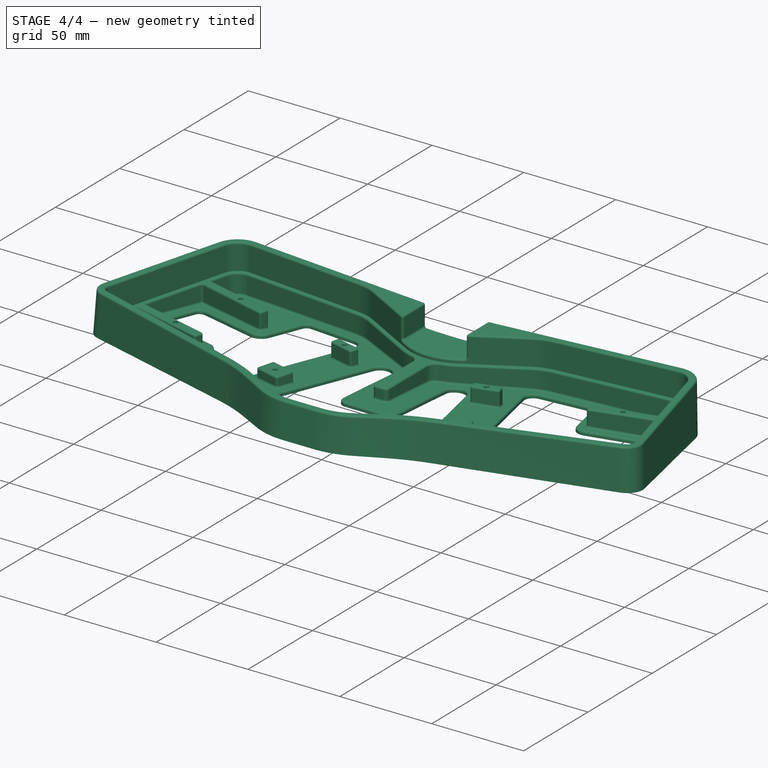
[diagram: stage 4 of 4 — iso view after this stage's code; geometry added in this stage tinted green]
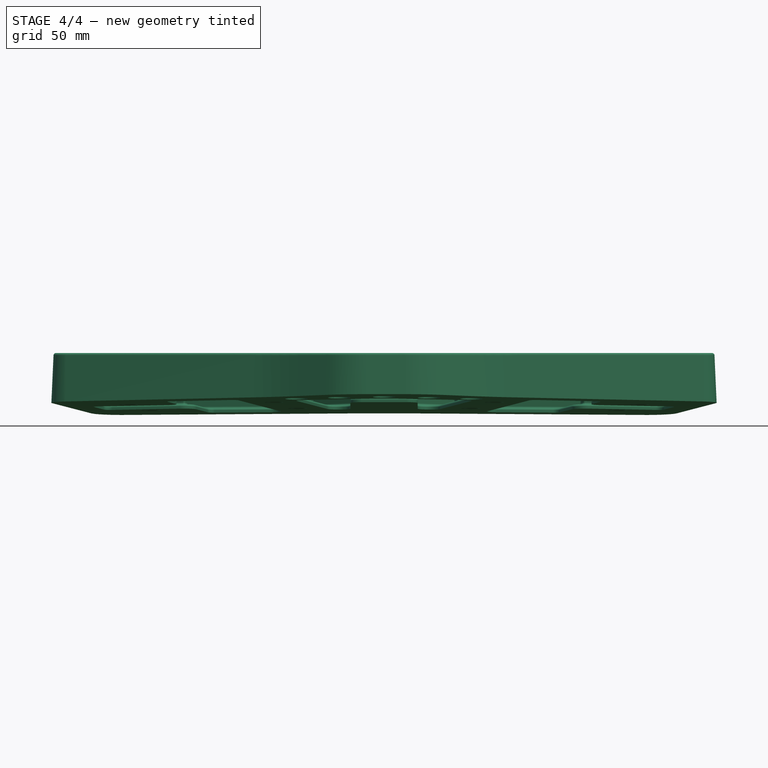
[diagram: stage 4 of 4 — front view after this stage's code; geometry added in this stage tinted green]
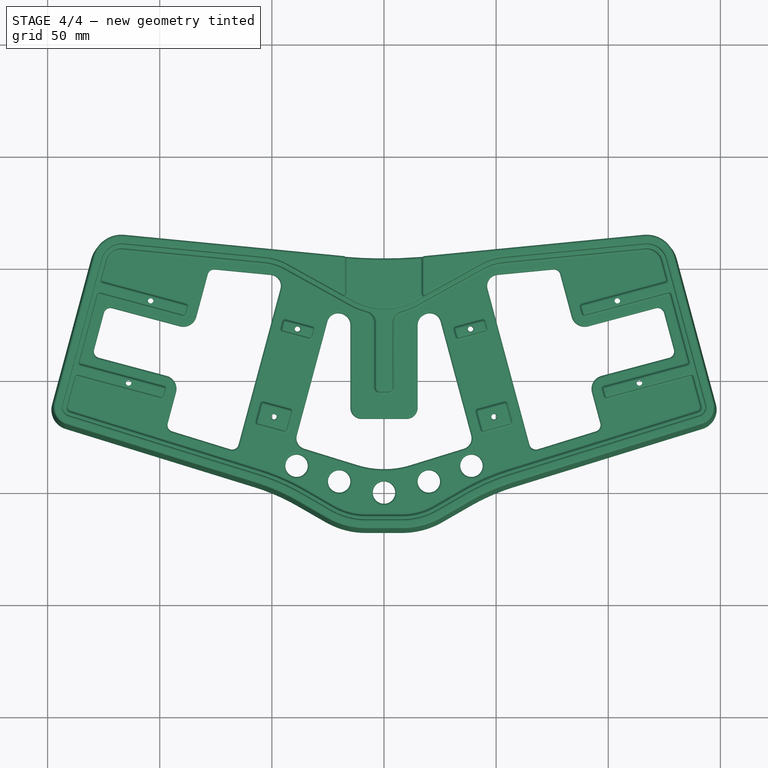
[diagram: stage 4 of 4 — top view after this stage's code; geometry added in this stage tinted green]
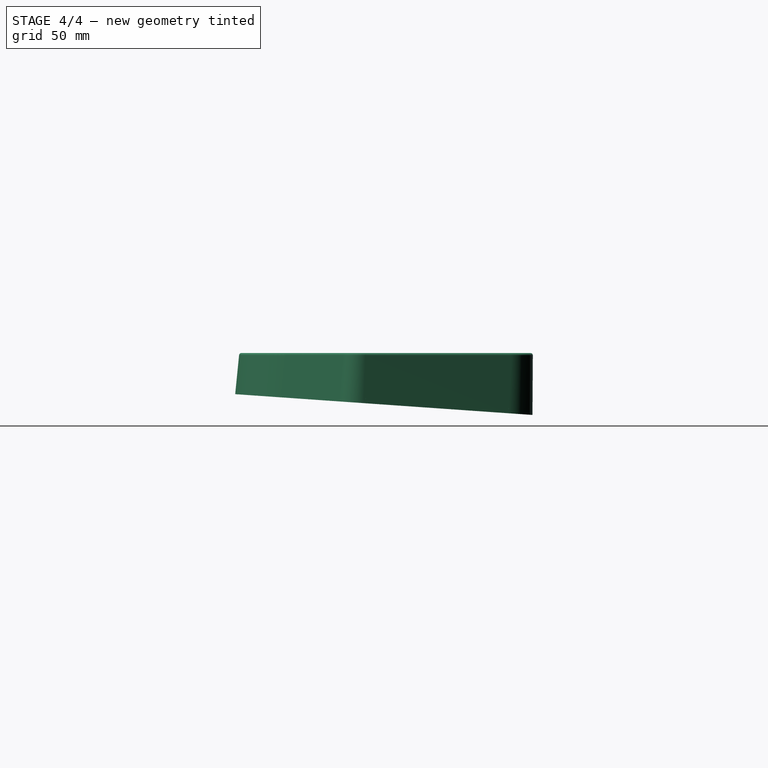
[diagram: stage 4 of 4 — right view after this stage's code; geometry added in this stage tinted green]
FEATURE [PartDesign::Fillet] Fillet
  Base = -> Chamfer [Face86,Face85,Face84,Face87,Edge487,Edge583,Face88,Edge615,Edge577,Edge392]
  BaseFeature = -> Chamfer
  Radius = 1
  SupportTransform = false
  UseAllEdges = false
FEATURE [PartDesign::Fillet] Fillet001
  Base = -> Fillet [Edge386,Edge498,Edge506,Edge504]
  BaseFeature = -> Fillet
  Radius = 0.6
  SupportTransform = false
  UseAllEdges = false
FEATURE [PartDesign::Body] Body
  Group = -> [Sketch,Sketch001,Sketch002,Sketch003,Sketch004,AdditiveLoft,Pocket,Pocket001,Hole,Sketch005,Pocket002,Sketch006,Pocket003,Chamfer,Fillet,Fillet001]
  Origin = -> Origin
  Placement = pos=(0,0,0) rot=(1,0,0;0.069813rad)
  Tip = -> Fillet001
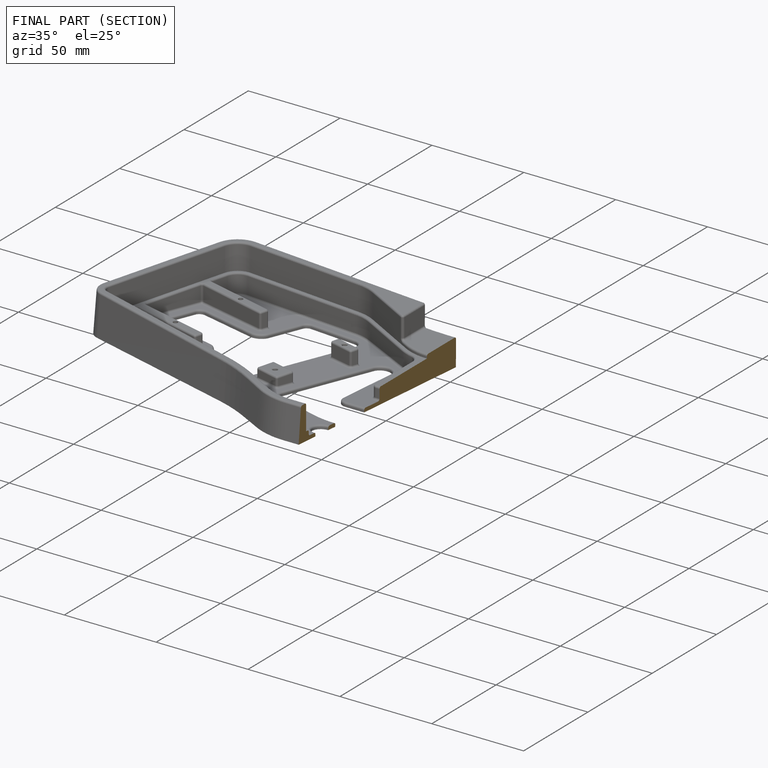
[diagram: finished part — half-section view (interior)]
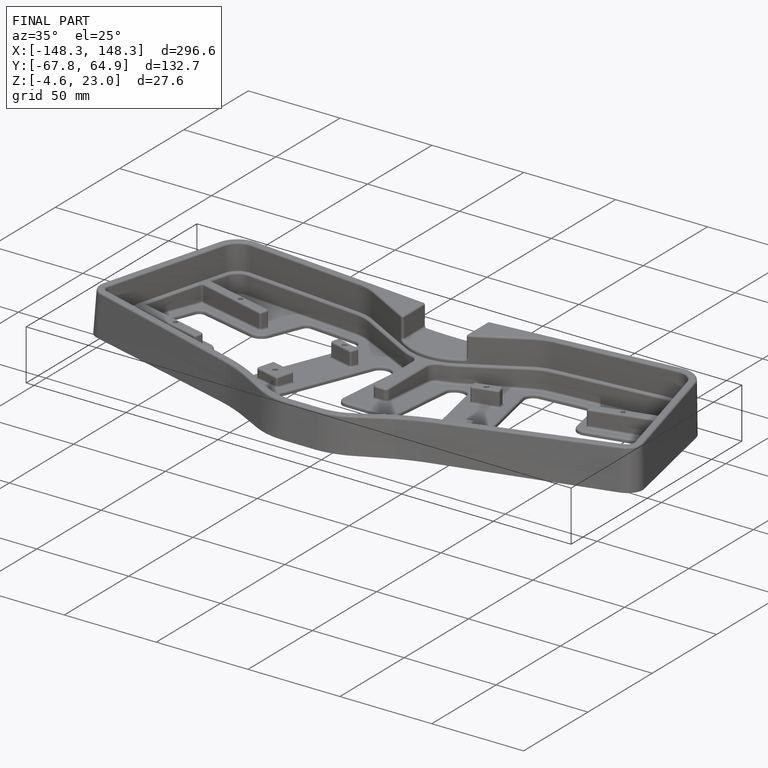
[diagram: finished part — iso view with bounding-box wireframe]
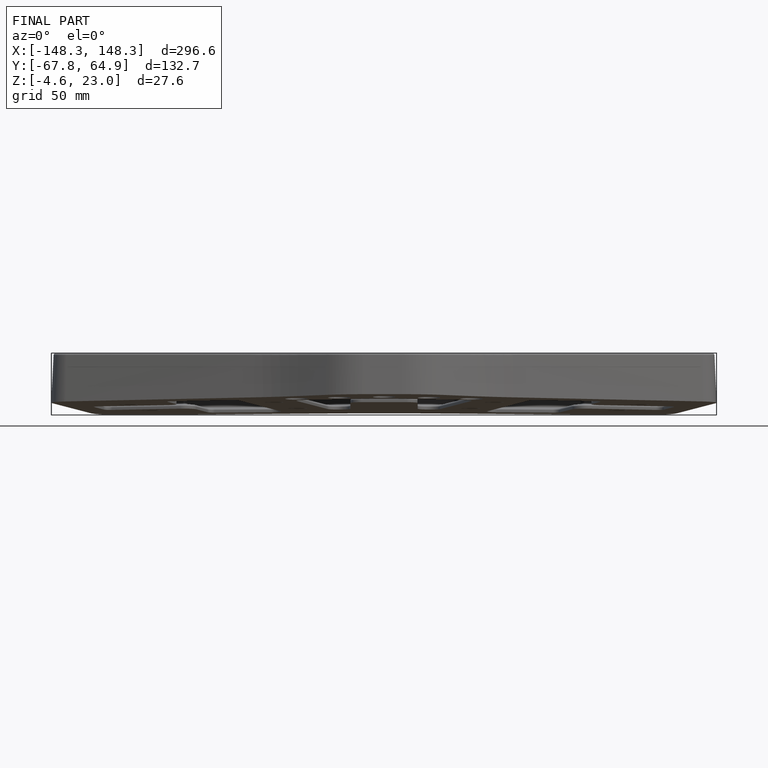
[diagram: finished part — front view with bounding-box wireframe]
